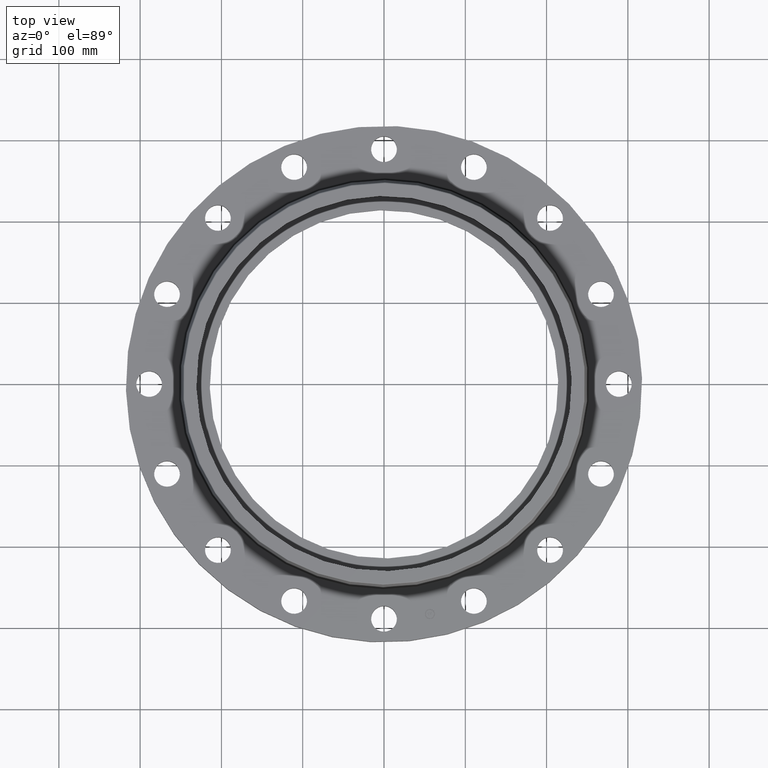
[diagram: clean part render]
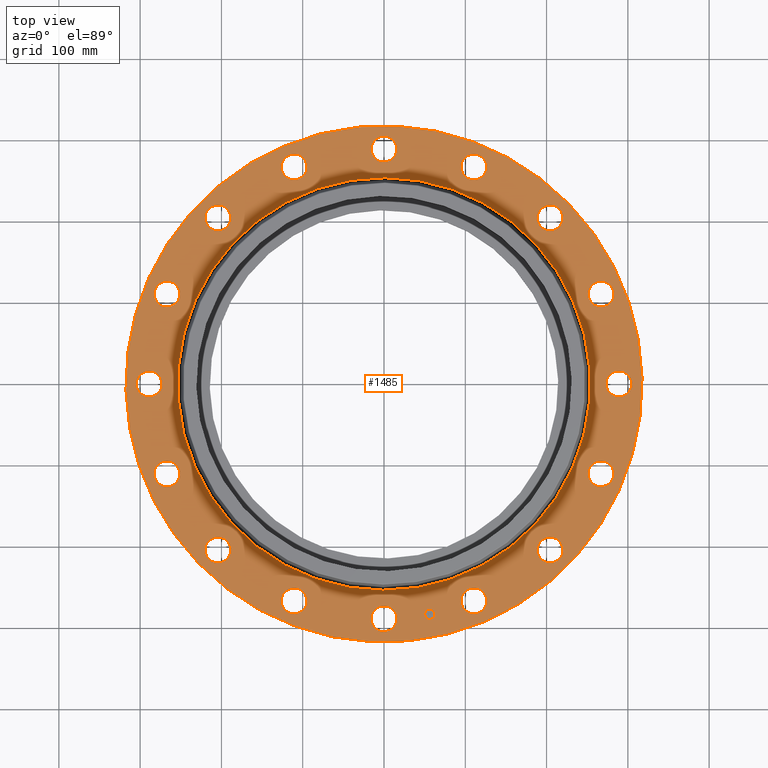
[diagram: same view with one face highlighted and labeled with its STEP entity id]
A machine part, top view. The second image highlights one B-rep face of the part: STEP entity #1485.
In plain terms, the highlighted planar face has unit normal (0, 0, -1).
Its self-contained STEP definition (entity closure, byte-faithful):
#473=AXIS2_PLACEMENT_3D('Circle Axis2P3D',#471,#472,$) ;
#492=AXIS2_PLACEMENT_3D('Circle Axis2P3D',#490,#491,$) ;
#509=AXIS2_PLACEMENT_3D('Circle Axis2P3D',#507,#508,$) ;
#544=AXIS2_PLACEMENT_3D('Circle Axis2P3D',#542,#543,$) ;
#694=AXIS2_PLACEMENT_3D('Circle Axis2P3D',#692,#693,$) ;
#706=AXIS2_PLACEMENT_3D('Circle Axis2P3D',#704,#705,$) ;
#737=AXIS2_PLACEMENT_3D('Circle Axis2P3D',#735,#736,$) ;
#749=AXIS2_PLACEMENT_3D('Circle Axis2P3D',#747,#748,$) ;
#780=AXIS2_PLACEMENT_3D('Circle Axis2P3D',#778,#779,$) ;
#792=AXIS2_PLACEMENT_3D('Circle Axis2P3D',#790,#791,$) ;
#823=AXIS2_PLACEMENT_3D('Circle Axis2P3D',#821,#822,$) ;
#835=AXIS2_PLACEMENT_3D('Circle Axis2P3D',#833,#834,$) ;
#866=AXIS2_PLACEMENT_3D('Circle Axis2P3D',#864,#865,$) ;
#878=AXIS2_PLACEMENT_3D('Circle Axis2P3D',#876,#877,$) ;
#909=AXIS2_PLACEMENT_3D('Circle Axis2P3D',#907,#908,$) ;
#921=AXIS2_PLACEMENT_3D('Circle Axis2P3D',#919,#920,$) ;
#952=AXIS2_PLACEMENT_3D('Circle Axis2P3D',#950,#951,$) ;
#964=AXIS2_PLACEMENT_3D('Circle Axis2P3D',#962,#963,$) ;
#995=AXIS2_PLACEMENT_3D('Circle Axis2P3D',#993,#994,$) ;
#1007=AXIS2_PLACEMENT_3D('Circle Axis2P3D',#1005,#1006,$) ;
#1038=AXIS2_PLACEMENT_3D('Circle Axis2P3D',#1036,#1037,$) ;
#1050=AXIS2_PLACEMENT_3D('Circle Axis2P3D',#1048,#1049,$) ;
#1081=AXIS2_PLACEMENT_3D('Circle Axis2P3D',#1079,#1080,$) ;
#1093=AXIS2_PLACEMENT_3D('Circle Axis2P3D',#1091,#1092,$) ;
#1124=AXIS2_PLACEMENT_3D('Circle Axis2P3D',#1122,#1123,$) ;
#1136=AXIS2_PLACEMENT_3D('Circle Axis2P3D',#1134,#1135,$) ;
#1167=AXIS2_PLACEMENT_3D('Circle Axis2P3D',#1165,#1166,$) ;
#1179=AXIS2_PLACEMENT_3D('Circle Axis2P3D',#1177,#1178,$) ;
#1210=AXIS2_PLACEMENT_3D('Circle Axis2P3D',#1208,#1209,$) ;
#1222=AXIS2_PLACEMENT_3D('Circle Axis2P3D',#1220,#1221,$) ;
#1253=AXIS2_PLACEMENT_3D('Circle Axis2P3D',#1251,#1252,$) ;
#1265=AXIS2_PLACEMENT_3D('Circle Axis2P3D',#1263,#1264,$) ;
#1296=AXIS2_PLACEMENT_3D('Circle Axis2P3D',#1294,#1295,$) ;
#1308=AXIS2_PLACEMENT_3D('Circle Axis2P3D',#1306,#1307,$) ;
#1339=AXIS2_PLACEMENT_3D('Circle Axis2P3D',#1337,#1338,$) ;
#1351=AXIS2_PLACEMENT_3D('Circle Axis2P3D',#1349,#1350,$) ;
#1393=AXIS2_PLACEMENT_3D('Plane Axis2P3D',#1390,#1391,#1392) ;
#1469=AXIS2_PLACEMENT_3D('Circle Axis2P3D',#1467,#1468,$) ;
#1478=AXIS2_PLACEMENT_3D('Circle Axis2P3D',#1476,#1477,$) ;
#468=CARTESIAN_POINT('Vertex',(-5.99281923258,-10.9697820237,1.50000000001)) ;
#471=CARTESIAN_POINT('Axis2P3D Location',(0.,0.,1.50000000001)) ;
#475=CARTESIAN_POINT('Vertex',(5.99281923258,10.9697820237,1.50000000001)) ;
#490=CARTESIAN_POINT('Axis2P3D Location',(0.,0.,1.50000000001)) ;
#507=CARTESIAN_POINT('Axis2P3D Location',(0.,0.,1.50000000001)) ;
#511=CARTESIAN_POINT('Vertex',(4.7896270013,8.76735341747,1.50000000001)) ;
#513=CARTESIAN_POINT('Vertex',(-4.7896270013,-8.76735341747,1.50000000001)) ;
#542=CARTESIAN_POINT('Axis2P3D Location',(0.,0.,1.50000000001)) ;
#682=CARTESIAN_POINT('Vertex',(11.1305351684,4.28608958348,1.50000000001)) ;
#689=CARTESIAN_POINT('Vertex',(9.8877241963,4.41995850287,1.50000000001)) ;
#692=CARTESIAN_POINT('Axis2P3D Location',(10.5091296824,4.35302404317,1.50000000001)) ;
#704=CARTESIAN_POINT('Axis2P3D Location',(10.5091296824,4.35302404317,1.50000000001)) ;
#725=CARTESIAN_POINT('Vertex',(8.64305815477,8.21930184299,1.50000000001)) ;
#732=CARTESIAN_POINT('Vertex',(7.44362111729,7.86737742906,1.50000000001)) ;
#735=CARTESIAN_POINT('Axis2P3D Location',(8.04333963603,8.04333963603,1.50000000001)) ;
#747=CARTESIAN_POINT('Axis2P3D Location',(8.04333963603,8.04333963603,1.50000000001)) ;
#768=CARTESIAN_POINT('Vertex',(4.83975388658,10.9011999051,1.50000000001)) ;
#775=CARTESIAN_POINT('Vertex',(3.86629419976,10.1170594596,1.50000000001)) ;
#778=CARTESIAN_POINT('Axis2P3D Location',(4.35302404317,10.5091296824,1.50000000001)) ;
#790=CARTESIAN_POINT('Axis2P3D Location',(4.35302404317,10.5091296824,1.50000000001)) ;
#811=CARTESIAN_POINT('Vertex',(0.299640961629,11.9234891012,1.50000000001)) ;
#818=CARTESIAN_POINT('Vertex',(-0.299640961629,10.8265108989,1.50000000001)) ;
#821=CARTESIAN_POINT('Axis2P3D Location',(-2.08955360105E-015,11.375,1.50000000001)) ;
#833=CARTESIAN_POINT('Axis2P3D Location',(-2.08955360105E-015,11.375,1.50000000001)) ;
#854=CARTESIAN_POINT('Vertex',(-4.28608958348,11.1305351684,1.50000000001)) ;
#861=CARTESIAN_POINT('Vertex',(-4.41995850287,9.8877241963,1.50000000001)) ;
#864=CARTESIAN_POINT('Axis2P3D Location',(-4.35302404317,10.5091296824,1.50000000001)) ;
#876=CARTESIAN_POINT('Axis2P3D Location',(-4.35302404317,10.5091296824,1.50000000001)) ;
#897=CARTESIAN_POINT('Vertex',(-8.21930184299,8.64305815477,1.50000000001)) ;
#904=CARTESIAN_POINT('Vertex',(-7.86737742906,7.44362111729,1.50000000001)) ;
#907=CARTESIAN_POINT('Axis2P3D Location',(-8.04333963603,8.04333963603,1.50000000001)) ;
#919=CARTESIAN_POINT('Axis2P3D Location',(-8.04333963603,8.04333963603,1.50000000001)) ;
#940=CARTESIAN_POINT('Vertex',(-10.9011999051,4.83975388658,1.50000000001)) ;
#947=CARTESIAN_POINT('Vertex',(-10.1170594596,3.86629419976,1.50000000001)) ;
#950=CARTESIAN_POINT('Axis2P3D Location',(-10.5091296824,4.35302404317,1.50000000001)) ;
#962=CARTESIAN_POINT('Axis2P3D Location',(-10.5091296824,4.35302404317,1.50000000001)) ;
#983=CARTESIAN_POINT('Vertex',(-11.9234891012,0.299640961629,1.50000000001)) ;
#990=CARTESIAN_POINT('Vertex',(-10.8265108989,-0.299640961629,1.50000000001)) ;
#993=CARTESIAN_POINT('Axis2P3D Location',(-11.375,-1.39303573404E-015,1.50000000001)) ;
#1005=CARTESIAN_POINT('Axis2P3D Location',(-11.375,-1.39303573404E-015,1.50000000001)) ;
#1026=CARTESIAN_POINT('Vertex',(-11.1305351684,-4.28608958348,1.50000000001)) ;
#1033=CARTESIAN_POINT('Vertex',(-9.8877241963,-4.41995850287,1.50000000001)) ;
#1036=CARTESIAN_POINT('Axis2P3D Location',(-10.5091296824,-4.35302404317,1.50000000001)) ;
#1048=CARTESIAN_POINT('Axis2P3D Location',(-10.5091296824,-4.35302404317,1.50000000001)) ;
#1069=CARTESIAN_POINT('Vertex',(-8.64305815477,-8.21930184299,1.50000000001)) ;
#1076=CARTESIAN_POINT('Vertex',(-7.44362111729,-7.86737742906,1.50000000001)) ;
#1079=CARTESIAN_POINT('Axis2P3D Location',(-8.04333963603,-8.04333963603,1.50000000001)) ;
#1091=CARTESIAN_POINT('Axis2P3D Location',(-8.04333963603,-8.04333963603,1.50000000001)) ;
#1112=CARTESIAN_POINT('Vertex',(-4.83975388658,-10.9011999051,1.50000000001)) ;
#1119=CARTESIAN_POINT('Vertex',(-3.86629419976,-10.1170594596,1.50000000001)) ;
#1122=CARTESIAN_POINT('Axis2P3D Location',(-4.35302404317,-10.5091296824,1.50000000001)) ;
#1134=CARTESIAN_POINT('Axis2P3D Location',(-4.35302404317,-10.5091296824,1.50000000001)) ;
#1155=CARTESIAN_POINT('Vertex',(-0.299640961629,-11.9234891012,1.50000000001)) ;
#1162=CARTESIAN_POINT('Vertex',(0.299640961629,-10.8265108989,1.50000000001)) ;
#1165=CARTESIAN_POINT('Axis2P3D Location',(-1.54141200939E-015,-11.375,1.50000000001)) ;
#1177=CARTESIAN_POINT('Axis2P3D Location',(-1.54141200939E-015,-11.375,1.50000000001)) ;
#1198=CARTESIAN_POINT('Vertex',(4.28608958348,-11.1305351684,1.50000000001)) ;
#1205=CARTESIAN_POINT('Vertex',(4.41995850287,-9.8877241963,1.50000000001)) ;
#1208=CARTESIAN_POINT('Axis2P3D Location',(4.35302404317,-10.5091296824,1.50000000001)) ;
#1220=CARTESIAN_POINT('Axis2P3D Location',(4.35302404317,-10.5091296824,1.50000000001)) ;
#1241=CARTESIAN_POINT('Vertex',(8.21930184299,-8.64305815477,1.50000000001)) ;
#1248=CARTESIAN_POINT('Vertex',(7.86737742906,-7.44362111729,1.50000000001)) ;
#1251=CARTESIAN_POINT('Axis2P3D Location',(8.04333963603,-8.04333963603,1.50000000001)) ;
#1263=CARTESIAN_POINT('Axis2P3D Location',(8.04333963603,-8.04333963603,1.50000000001)) ;
#1284=CARTESIAN_POINT('Vertex',(10.9011999051,-4.83975388658,1.50000000001)) ;
#1291=CARTESIAN_POINT('Vertex',(10.1170594596,-3.86629419976,1.50000000001)) ;
#1294=CARTESIAN_POINT('Axis2P3D Location',(10.5091296824,-4.35302404317,1.50000000001)) ;
#1306=CARTESIAN_POINT('Axis2P3D Location',(10.5091296824,-4.35302404317,1.50000000001)) ;
#1327=CARTESIAN_POINT('Vertex',(10.8265108989,0.299640961629,1.50000000001)) ;
#1334=CARTESIAN_POINT('Vertex',(11.9234891012,-0.299640961629,1.50000000001)) ;
#1337=CARTESIAN_POINT('Axis2P3D Location',(11.375,0.,1.50000000001)) ;
#1349=CARTESIAN_POINT('Axis2P3D Location',(11.375,0.,1.50000000001)) ;
#1390=CARTESIAN_POINT('Axis2P3D Location',(0.,12.5000000001,1.50000000001)) ;
#1467=CARTESIAN_POINT('Axis2P3D Location',(2.21915241294,-11.1564325646,1.50000000001)) ;
#1471=CARTESIAN_POINT('Vertex',(2.46189676984,-11.1081477099,1.50000000001)) ;
#1473=CARTESIAN_POINT('Vertex',(1.97640805604,-11.2047174193,1.50000000001)) ;
#1476=CARTESIAN_POINT('Axis2P3D Location',(2.21915241294,-11.1564325646,1.50000000001)) ;
#472=DIRECTION('Axis2P3D Direction',(0.,0.,-0.0393700787402)) ;
#491=DIRECTION('Axis2P3D Direction',(0.,0.,-0.0393700787402)) ;
#508=DIRECTION('Axis2P3D Direction',(0.,0.,-0.0393700787402)) ;
#543=DIRECTION('Axis2P3D Direction',(0.,0.,-0.0393700787402)) ;
#693=DIRECTION('Axis2P3D Direction',(0.,0.,-0.0393700787402)) ;
#705=DIRECTION('Axis2P3D Direction',(0.,0.,-0.0393700787402)) ;
#736=DIRECTION('Axis2P3D Direction',(0.,0.,-0.0393700787402)) ;
#748=DIRECTION('Axis2P3D Direction',(0.,0.,-0.0393700787402)) ;
#779=DIRECTION('Axis2P3D Direction',(0.,0.,-0.0393700787402)) ;
#791=DIRECTION('Axis2P3D Direction',(0.,0.,-0.0393700787402)) ;
#822=DIRECTION('Axis2P3D Direction',(0.,0.,-0.0393700787402)) ;
#834=DIRECTION('Axis2P3D Direction',(0.,0.,-0.0393700787402)) ;
#865=DIRECTION('Axis2P3D Direction',(0.,0.,-0.0393700787402)) ;
#877=DIRECTION('Axis2P3D Direction',(0.,0.,-0.0393700787402)) ;
#908=DIRECTION('Axis2P3D Direction',(0.,0.,-0.0393700787402)) ;
#920=DIRECTION('Axis2P3D Direction',(0.,0.,-0.0393700787402)) ;
#951=DIRECTION('Axis2P3D Direction',(0.,0.,-0.0393700787402)) ;
#963=DIRECTION('Axis2P3D Direction',(0.,0.,-0.0393700787402)) ;
#994=DIRECTION('Axis2P3D Direction',(-0.,0.,-0.0393700787402)) ;
#1006=DIRECTION('Axis2P3D Direction',(-0.,0.,-0.0393700787402)) ;
#1037=DIRECTION('Axis2P3D Direction',(-0.,0.,-0.0393700787402)) ;
#1049=DIRECTION('Axis2P3D Direction',(-0.,0.,-0.0393700787402)) ;
#1080=DIRECTION('Axis2P3D Direction',(-0.,0.,-0.0393700787402)) ;
#1092=DIRECTION('Axis2P3D Direction',(-0.,0.,-0.0393700787402)) ;
#1123=DIRECTION('Axis2P3D Direction',(-0.,0.,-0.0393700787402)) ;
#1135=DIRECTION('Axis2P3D Direction',(-0.,0.,-0.0393700787402)) ;
#1166=DIRECTION('Axis2P3D Direction',(0.,-0.,-0.0393700787402)) ;
#1178=DIRECTION('Axis2P3D Direction',(0.,-0.,-0.0393700787402)) ;
#1209=DIRECTION('Axis2P3D Direction',(0.,-0.,-0.0393700787402)) ;
#1221=DIRECTION('Axis2P3D Direction',(0.,-0.,-0.0393700787402)) ;
#1252=DIRECTION('Axis2P3D Direction',(0.,-0.,-0.0393700787402)) ;
#1264=DIRECTION('Axis2P3D Direction',(0.,-0.,-0.0393700787402)) ;
#1295=DIRECTION('Axis2P3D Direction',(0.,-0.,-0.0393700787402)) ;
#1307=DIRECTION('Axis2P3D Direction',(0.,-0.,-0.0393700787402)) ;
#1338=DIRECTION('Axis2P3D Direction',(0.,-0.,-0.0393700787402)) ;
#1350=DIRECTION('Axis2P3D Direction',(0.,-0.,-0.0393700787402)) ;
#1391=DIRECTION('Axis2P3D Direction',(0.,0.,-0.0393700787402)) ;
#1392=DIRECTION('Axis2P3D XDirection',(0.0393700787402,0.,0.)) ;
#1468=DIRECTION('Axis2P3D Direction',(0.,0.,-0.0393700787402)) ;
#1477=DIRECTION('Axis2P3D Direction',(0.,0.,-0.0393700787402)) ;
#1396=ORIENTED_EDGE('',*,*,#494,.F.) ;
#1397=ORIENTED_EDGE('',*,*,#477,.F.) ;
#1400=ORIENTED_EDGE('',*,*,#1341,.T.) ;
#1401=ORIENTED_EDGE('',*,*,#1353,.T.) ;
#1404=ORIENTED_EDGE('',*,*,#546,.T.) ;
#1405=ORIENTED_EDGE('',*,*,#515,.T.) ;
#1408=ORIENTED_EDGE('',*,*,#1298,.T.) ;
#1409=ORIENTED_EDGE('',*,*,#1310,.T.) ;
#1412=ORIENTED_EDGE('',*,*,#1255,.T.) ;
#1413=ORIENTED_EDGE('',*,*,#1267,.T.) ;
#1416=ORIENTED_EDGE('',*,*,#1212,.T.) ;
#1417=ORIENTED_EDGE('',*,*,#1224,.T.) ;
#1420=ORIENTED_EDGE('',*,*,#1169,.T.) ;
#1421=ORIENTED_EDGE('',*,*,#1181,.T.) ;
#1424=ORIENTED_EDGE('',*,*,#1126,.T.) ;
#1425=ORIENTED_EDGE('',*,*,#1138,.T.) ;
#1428=ORIENTED_EDGE('',*,*,#1083,.T.) ;
#1429=ORIENTED_EDGE('',*,*,#1095,.T.) ;
#1432=ORIENTED_EDGE('',*,*,#1040,.T.) ;
#1433=ORIENTED_EDGE('',*,*,#1052,.T.) ;
#1436=ORIENTED_EDGE('',*,*,#997,.T.) ;
#1437=ORIENTED_EDGE('',*,*,#1009,.T.) ;
#1440=ORIENTED_EDGE('',*,*,#954,.T.) ;
#1441=ORIENTED_EDGE('',*,*,#966,.T.) ;
#1444=ORIENTED_EDGE('',*,*,#911,.T.) ;
#1445=ORIENTED_EDGE('',*,*,#923,.T.) ;
#1448=ORIENTED_EDGE('',*,*,#868,.T.) ;
#1449=ORIENTED_EDGE('',*,*,#880,.T.) ;
#1452=ORIENTED_EDGE('',*,*,#825,.T.) ;
#1453=ORIENTED_EDGE('',*,*,#837,.T.) ;
#1456=ORIENTED_EDGE('',*,*,#782,.T.) ;
#1457=ORIENTED_EDGE('',*,*,#794,.T.) ;
#1460=ORIENTED_EDGE('',*,*,#739,.T.) ;
#1461=ORIENTED_EDGE('',*,*,#751,.T.) ;
#1464=ORIENTED_EDGE('',*,*,#696,.T.) ;
#1465=ORIENTED_EDGE('',*,*,#708,.T.) ;
#1482=ORIENTED_EDGE('',*,*,#1475,.T.) ;
#1483=ORIENTED_EDGE('',*,*,#1480,.T.) ;
#1402=FACE_BOUND('',#1399,.T.) ;
#1406=FACE_BOUND('',#1403,.T.) ;
#1410=FACE_BOUND('',#1407,.T.) ;
#1414=FACE_BOUND('',#1411,.T.) ;
#1418=FACE_BOUND('',#1415,.T.) ;
#1422=FACE_BOUND('',#1419,.T.) ;
#1426=FACE_BOUND('',#1423,.T.) ;
#1430=FACE_BOUND('',#1427,.T.) ;
#1434=FACE_BOUND('',#1431,.T.) ;
#1438=FACE_BOUND('',#1435,.T.) ;
#1442=FACE_BOUND('',#1439,.T.) ;
#1446=FACE_BOUND('',#1443,.T.) ;
#1450=FACE_BOUND('',#1447,.T.) ;
#1454=FACE_BOUND('',#1451,.T.) ;
#1458=FACE_BOUND('',#1455,.T.) ;
#1462=FACE_BOUND('',#1459,.T.) ;
#1466=FACE_BOUND('',#1463,.T.) ;
#1484=FACE_BOUND('',#1481,.T.) ;
#1485=ADVANCED_FACE('PartBody',(#1398,#1402,#1406,#1410,#1414,#1418,#1422,#1426,#1430,#1434,#1438,#1442,#1446,#1450,#1454,#1458,#1462,#1466,#1484),#1394,.F.) ;
#474=CIRCLE('generated circle',#473,12.5000000001) ;
#493=CIRCLE('generated circle',#492,12.5000000001) ;
#510=CIRCLE('generated circle',#509,9.99034597791) ;
#545=CIRCLE('generated circle',#544,9.99034597791) ;
#695=CIRCLE('generated circle',#694,0.625000000002) ;
#707=CIRCLE('generated circle',#706,0.625000000002) ;
#738=CIRCLE('generated circle',#737,0.625000000002) ;
#750=CIRCLE('generated circle',#749,0.625000000002) ;
#781=CIRCLE('generated circle',#780,0.625000000002) ;
#793=CIRCLE('generated circle',#792,0.625000000002) ;
#824=CIRCLE('generated circle',#823,0.625000000002) ;
#836=CIRCLE('generated circle',#835,0.625000000002) ;
#867=CIRCLE('generated circle',#866,0.625000000002) ;
#879=CIRCLE('generated circle',#878,0.625000000002) ;
#910=CIRCLE('generated circle',#909,0.625000000002) ;
#922=CIRCLE('generated circle',#921,0.625000000002) ;
#953=CIRCLE('generated circle',#952,0.625000000002) ;
#965=CIRCLE('generated circle',#964,0.625000000002) ;
#996=CIRCLE('generated circle',#995,0.625000000003) ;
#1008=CIRCLE('generated circle',#1007,0.625000000003) ;
#1039=CIRCLE('generated circle',#1038,0.625000000002) ;
#1051=CIRCLE('generated circle',#1050,0.625000000002) ;
#1082=CIRCLE('generated circle',#1081,0.625000000002) ;
#1094=CIRCLE('generated circle',#1093,0.625000000002) ;
#1125=CIRCLE('generated circle',#1124,0.625000000002) ;
#1137=CIRCLE('generated circle',#1136,0.625000000002) ;
#1168=CIRCLE('generated circle',#1167,0.625000000002) ;
#1180=CIRCLE('generated circle',#1179,0.625000000002) ;
#1211=CIRCLE('generated circle',#1210,0.625000000002) ;
#1223=CIRCLE('generated circle',#1222,0.625000000002) ;
#1254=CIRCLE('generated circle',#1253,0.625000000002) ;
#1266=CIRCLE('generated circle',#1265,0.625000000002) ;
#1297=CIRCLE('generated circle',#1296,0.625000000002) ;
#1309=CIRCLE('generated circle',#1308,0.625000000002) ;
#1340=CIRCLE('generated circle',#1339,0.625000000002) ;
#1352=CIRCLE('generated circle',#1351,0.625000000002) ;
#1470=CIRCLE('generated circle',#1469,0.247500000001) ;
#1479=CIRCLE('generated circle',#1478,0.247500000001) ;
#477=EDGE_CURVE('',#469,#476,#474,.T.) ;
#494=EDGE_CURVE('',#476,#469,#493,.T.) ;
#515=EDGE_CURVE('',#512,#514,#510,.T.) ;
#546=EDGE_CURVE('',#514,#512,#545,.T.) ;
#696=EDGE_CURVE('',#683,#690,#695,.T.) ;
#708=EDGE_CURVE('',#690,#683,#707,.T.) ;
#739=EDGE_CURVE('',#726,#733,#738,.T.) ;
#751=EDGE_CURVE('',#733,#726,#750,.T.) ;
#782=EDGE_CURVE('',#769,#776,#781,.T.) ;
#794=EDGE_CURVE('',#776,#769,#793,.T.) ;
#825=EDGE_CURVE('',#812,#819,#824,.T.) ;
#837=EDGE_CURVE('',#819,#812,#836,.T.) ;
#868=EDGE_CURVE('',#855,#862,#867,.T.) ;
#880=EDGE_CURVE('',#862,#855,#879,.T.) ;
#911=EDGE_CURVE('',#898,#905,#910,.T.) ;
#923=EDGE_CURVE('',#905,#898,#922,.T.) ;
#954=EDGE_CURVE('',#941,#948,#953,.T.) ;
#966=EDGE_CURVE('',#948,#941,#965,.T.) ;
#997=EDGE_CURVE('',#984,#991,#996,.T.) ;
#1009=EDGE_CURVE('',#991,#984,#1008,.T.) ;
#1040=EDGE_CURVE('',#1027,#1034,#1039,.T.) ;
#1052=EDGE_CURVE('',#1034,#1027,#1051,.T.) ;
#1083=EDGE_CURVE('',#1070,#1077,#1082,.T.) ;
#1095=EDGE_CURVE('',#1077,#1070,#1094,.T.) ;
#1126=EDGE_CURVE('',#1113,#1120,#1125,.T.) ;
#1138=EDGE_CURVE('',#1120,#1113,#1137,.T.) ;
#1169=EDGE_CURVE('',#1156,#1163,#1168,.T.) ;
#1181=EDGE_CURVE('',#1163,#1156,#1180,.T.) ;
#1212=EDGE_CURVE('',#1199,#1206,#1211,.T.) ;
#1224=EDGE_CURVE('',#1206,#1199,#1223,.T.) ;
#1255=EDGE_CURVE('',#1242,#1249,#1254,.T.) ;
#1267=EDGE_CURVE('',#1249,#1242,#1266,.T.) ;
#1298=EDGE_CURVE('',#1285,#1292,#1297,.T.) ;
#1310=EDGE_CURVE('',#1292,#1285,#1309,.T.) ;
#1341=EDGE_CURVE('',#1328,#1335,#1340,.T.) ;
#1353=EDGE_CURVE('',#1335,#1328,#1352,.T.) ;
#1475=EDGE_CURVE('',#1472,#1474,#1470,.T.) ;
#1480=EDGE_CURVE('',#1474,#1472,#1479,.T.) ;
#1395=EDGE_LOOP('',(#1396,#1397)) ;
#1399=EDGE_LOOP('',(#1400,#1401)) ;
#1403=EDGE_LOOP('',(#1404,#1405)) ;
#1407=EDGE_LOOP('',(#1408,#1409)) ;
#1411=EDGE_LOOP('',(#1412,#1413)) ;
#1415=EDGE_LOOP('',(#1416,#1417)) ;
#1419=EDGE_LOOP('',(#1420,#1421)) ;
#1423=EDGE_LOOP('',(#1424,#1425)) ;
#1427=EDGE_LOOP('',(#1428,#1429)) ;
#1431=EDGE_LOOP('',(#1432,#1433)) ;
#1435=EDGE_LOOP('',(#1436,#1437)) ;
#1439=EDGE_LOOP('',(#1440,#1441)) ;
#1443=EDGE_LOOP('',(#1444,#1445)) ;
#1447=EDGE_LOOP('',(#1448,#1449)) ;
#1451=EDGE_LOOP('',(#1452,#1453)) ;
#1455=EDGE_LOOP('',(#1456,#1457)) ;
#1459=EDGE_LOOP('',(#1460,#1461)) ;
#1463=EDGE_LOOP('',(#1464,#1465)) ;
#1481=EDGE_LOOP('',(#1482,#1483)) ;
#1398=FACE_OUTER_BOUND('',#1395,.T.) ;
#1394=PLANE('',#1393) ;
#469=VERTEX_POINT('',#468) ;
#476=VERTEX_POINT('',#475) ;
#512=VERTEX_POINT('',#511) ;
#514=VERTEX_POINT('',#513) ;
#683=VERTEX_POINT('',#682) ;
#690=VERTEX_POINT('',#689) ;
#726=VERTEX_POINT('',#725) ;
#733=VERTEX_POINT('',#732) ;
#769=VERTEX_POINT('',#768) ;
#776=VERTEX_POINT('',#775) ;
#812=VERTEX_POINT('',#811) ;
#819=VERTEX_POINT('',#818) ;
#855=VERTEX_POINT('',#854) ;
#862=VERTEX_POINT('',#861) ;
#898=VERTEX_POINT('',#897) ;
#905=VERTEX_POINT('',#904) ;
#941=VERTEX_POINT('',#940) ;
#948=VERTEX_POINT('',#947) ;
#984=VERTEX_POINT('',#983) ;
#991=VERTEX_POINT('',#990) ;
#1027=VERTEX_POINT('',#1026) ;
#1034=VERTEX_POINT('',#1033) ;
#1070=VERTEX_POINT('',#1069) ;
#1077=VERTEX_POINT('',#1076) ;
#1113=VERTEX_POINT('',#1112) ;
#1120=VERTEX_POINT('',#1119) ;
#1156=VERTEX_POINT('',#1155) ;
#1163=VERTEX_POINT('',#1162) ;
#1199=VERTEX_POINT('',#1198) ;
#1206=VERTEX_POINT('',#1205) ;
#1242=VERTEX_POINT('',#1241) ;
#1249=VERTEX_POINT('',#1248) ;
#1285=VERTEX_POINT('',#1284) ;
#1292=VERTEX_POINT('',#1291) ;
#1328=VERTEX_POINT('',#1327) ;
#1335=VERTEX_POINT('',#1334) ;
#1472=VERTEX_POINT('',#1471) ;
#1474=VERTEX_POINT('',#1473) ;